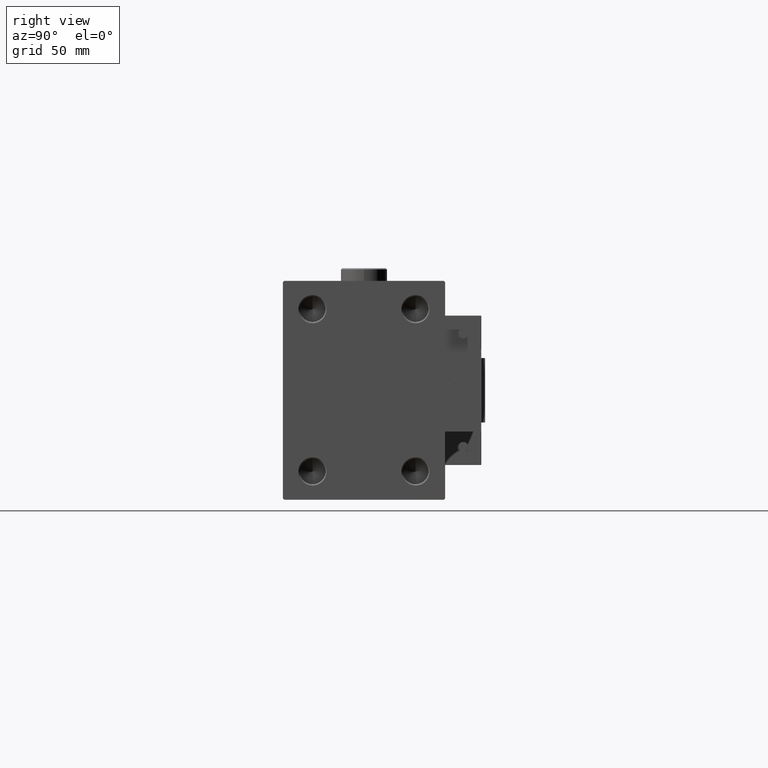
[diagram: clean part render]
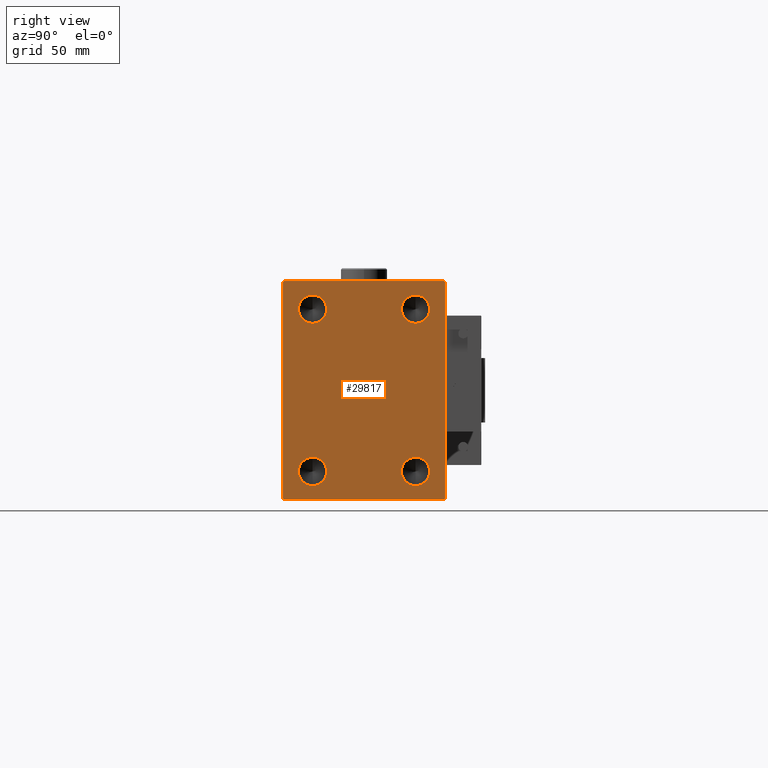
[diagram: same view with one face highlighted and labeled with its STEP entity id]
A machine part, right view. The second image highlights one B-rep face of the part: STEP entity #29817.
In plain terms, the highlighted planar face has unit normal (1, 0, 0).
Its self-contained STEP definition (entity closure, byte-faithful):
#253 = CIRCLE ( 'NONE', #27400, 5.500000000000032863 ) ;
#322 = VECTOR ( 'NONE', #26137, 1000.000000000000114 ) ;
#574 = EDGE_LOOP ( 'NONE', ( #2539, #31193 ) ) ;
#1069 = VERTEX_POINT ( 'NONE', #5787 ) ;
#1148 = ORIENTED_EDGE ( 'NONE', *, *, #22040, .T. ) ;
#1306 = VECTOR ( 'NONE', #42528, 1000.000000000000000 ) ;
#1458 = DIRECTION ( 'NONE',  ( 1.000000000000000000, 0.000000000000000000, 0.000000000000000000 ) ) ;
#1615 = CARTESIAN_POINT ( 'NONE',  ( 183.0000000000000000, 31.50000000000001421, -42.50000000000000711 ) ) ;
#1986 = CARTESIAN_POINT ( 'NONE',  ( 183.0000000000000000, -36.75000000000001421, 36.75000000000001421 ) ) ;
#2131 = DIRECTION ( 'NONE',  ( -0.000000000000000000, 0.7071067811865425767, -0.7071067811865525687 ) ) ;
#2152 = CARTESIAN_POINT ( 'NONE',  ( 183.0000000000000000, 19.99999999999999645, -31.50000000000000000 ) ) ;
#2352 = DIRECTION ( 'NONE',  ( 1.000000000000000000, -0.000000000000000000, -0.000000000000000000 ) ) ;
#2431 = EDGE_CURVE ( 'NONE', #7423, #1069, #38837, .T. ) ;
#2539 = ORIENTED_EDGE ( 'NONE', *, *, #48249, .F. ) ;
#2809 = CARTESIAN_POINT ( 'NONE',  ( 183.0000000000000000, 31.50000000000001421, -42.00000000000000711 ) ) ;
#2904 = CIRCLE ( 'NONE', #37671, 5.500000000000032863 ) ;
#2983 = VERTEX_POINT ( 'NONE', #40190 ) ;
#3030 = CARTESIAN_POINT ( 'NONE',  ( 183.0000000000000000, -20.00000000000000355, 25.99999999999996447 ) ) ;
#4111 = VERTEX_POINT ( 'NONE', #39088 ) ;
#4473 = AXIS2_PLACEMENT_3D ( 'NONE', #24215, #12008, #41193 ) ;
#4623 = EDGE_CURVE ( 'NONE', #10064, #8561, #38938, .T. ) ;
#5659 = DIRECTION ( 'NONE',  ( 0.000000000000000000, 1.000000000000000000, 0.000000000000000000 ) ) ;
#5787 = CARTESIAN_POINT ( 'NONE',  ( 183.0000000000000000, 19.99999999999999645, -25.99999999999996447 ) ) ;
#6499 = ORIENTED_EDGE ( 'NONE', *, *, #22228, .F. ) ;
#7144 = VERTEX_POINT ( 'NONE', #19071 ) ;
#7423 = VERTEX_POINT ( 'NONE', #22462 ) ;
#8236 = EDGE_CURVE ( 'NONE', #23596, #14877, #27504, .T. ) ;
#8561 = VERTEX_POINT ( 'NONE', #20272 ) ;
#8788 = VECTOR ( 'NONE', #28236, 1000.000000000000000 ) ;
#9044 = CARTESIAN_POINT ( 'NONE',  ( 183.0000000000000000, -20.00000000000000355, -25.99999999999996447 ) ) ;
#9174 = FACE_OUTER_BOUND ( 'NONE', #21297, .T. ) ;
#9427 = LINE ( 'NONE', #46094, #34926 ) ;
#9603 = LINE ( 'NONE', #1615, #1306 ) ;
#9975 = PLANE ( 'NONE',  #32776 ) ;
#10064 = VERTEX_POINT ( 'NONE', #9044 ) ;
#10511 = AXIS2_PLACEMENT_3D ( 'NONE', #28496, #16314, #40465 ) ;
#11382 = CIRCLE ( 'NONE', #18166, 5.500000000000032863 ) ;
#11904 = DIRECTION ( 'NONE',  ( 0.000000000000000000, 0.000000000000000000, -1.000000000000000000 ) ) ;
#12008 = DIRECTION ( 'NONE',  ( 1.000000000000000000, -0.000000000000000000, -0.000000000000000000 ) ) ;
#12057 = LINE ( 'NONE', #15788, #8788 ) ;
#12347 = ORIENTED_EDGE ( 'NONE', *, *, #19467, .F. ) ;
#12382 = DIRECTION ( 'NONE',  ( 0.000000000000000000, 0.000000000000000000, -1.000000000000000000 ) ) ;
#12489 = CARTESIAN_POINT ( 'NONE',  ( 183.0000000000000000, 36.75000000000001421, 36.75000000000001421 ) ) ;
#12722 = EDGE_CURVE ( 'NONE', #1069, #7423, #45922, .T. ) ;
#13750 = EDGE_CURVE ( 'NONE', #39682, #2983, #52354, .T. ) ;
#13852 = ORIENTED_EDGE ( 'NONE', *, *, #8236, .T. ) ;
#14877 = VERTEX_POINT ( 'NONE', #15042 ) ;
#15036 = DIRECTION ( 'NONE',  ( 0.000000000000000000, 0.000000000000000000, -1.000000000000000000 ) ) ;
#15042 = CARTESIAN_POINT ( 'NONE',  ( 183.0000000000000000, -31.50000000000000000, -42.00000000000000000 ) ) ;
#15788 = CARTESIAN_POINT ( 'NONE',  ( 183.0000000000000000, 31.50000000000000000, 42.49999999999999289 ) ) ;
#15951 = AXIS2_PLACEMENT_3D ( 'NONE', #31817, #27559, #11904 ) ;
#16050 = AXIS2_PLACEMENT_3D ( 'NONE', #40013, #51733, #12382 ) ;
#16314 = DIRECTION ( 'NONE',  ( 1.000000000000000000, -0.000000000000000000, -0.000000000000000000 ) ) ;
#18117 = ORIENTED_EDGE ( 'NONE', *, *, #45670, .T. ) ;
#18166 = AXIS2_PLACEMENT_3D ( 'NONE', #24046, #40249, #15036 ) ;
#19071 = CARTESIAN_POINT ( 'NONE',  ( 183.0000000000000000, 31.00000000000001421, -42.50000000000000711 ) ) ;
#19467 = EDGE_CURVE ( 'NONE', #26426, #40215, #11382, .T. ) ;
#19816 = CARTESIAN_POINT ( 'NONE',  ( 183.0000000000000000, -31.50000000000000000, 42.00000000000001421 ) ) ;
#20272 = CARTESIAN_POINT ( 'NONE',  ( 183.0000000000000000, -20.00000000000000355, -37.00000000000003553 ) ) ;
#20614 = EDGE_CURVE ( 'NONE', #24690, #38771, #2904, .T. ) ;
#21297 = EDGE_LOOP ( 'NONE', ( #31875, #1148, #13852, #31353, #24708, #18117, #24694, #44758 ) ) ;
#21382 = DIRECTION ( 'NONE',  ( 0.000000000000000000, 0.000000000000000000, -1.000000000000000000 ) ) ;
#22040 = EDGE_CURVE ( 'NONE', #4111, #23596, #50878, .T. ) ;
#22163 = EDGE_CURVE ( 'NONE', #2983, #4111, #12057, .T. ) ;
#22228 = EDGE_CURVE ( 'NONE', #40215, #26426, #42726, .T. ) ;
#22462 = CARTESIAN_POINT ( 'NONE',  ( 183.0000000000000000, 19.99999999999999645, -37.00000000000003553 ) ) ;
#22608 = VERTEX_POINT ( 'NONE', #2809 ) ;
#23596 = VERTEX_POINT ( 'NONE', #19816 ) ;
#24046 = CARTESIAN_POINT ( 'NONE',  ( 183.0000000000000000, -20.00000000000000355, 31.50000000000000000 ) ) ;
#24215 = CARTESIAN_POINT ( 'NONE',  ( 183.0000000000000000, -20.00000000000000355, -31.50000000000000000 ) ) ;
#24540 = CARTESIAN_POINT ( 'NONE',  ( 183.0000000000000000, -31.00000000000000000, -42.50000000000000711 ) ) ;
#24690 = VERTEX_POINT ( 'NONE', #38891 ) ;
#24694 = ORIENTED_EDGE ( 'NONE', *, *, #25632, .T. ) ;
#24708 = ORIENTED_EDGE ( 'NONE', *, *, #25428, .T. ) ;
#25428 = EDGE_CURVE ( 'NONE', #35140, #7144, #26359, .T. ) ;
#25576 = VECTOR ( 'NONE', #28672, 1000.000000000000114 ) ;
#25632 = EDGE_CURVE ( 'NONE', #22608, #39682, #9603, .T. ) ;
#26137 = DIRECTION ( 'NONE',  ( 0.000000000000000000, -0.7071067811865474617, -0.7071067811865474617 ) ) ;
#26138 = CARTESIAN_POINT ( 'NONE',  ( 183.0000000000000000, 0.000000000000000000, 0.000000000000000000 ) ) ;
#26256 = CARTESIAN_POINT ( 'NONE',  ( 183.0000000000000000, -31.50000000000000000, 42.49999999999998579 ) ) ;
#26359 = LINE ( 'NONE', #30606, #47106 ) ;
#26426 = VERTEX_POINT ( 'NONE', #40170 ) ;
#27400 = AXIS2_PLACEMENT_3D ( 'NONE', #45359, #41340, #42410 ) ;
#27504 = LINE ( 'NONE', #26256, #34718 ) ;
#27559 = DIRECTION ( 'NONE',  ( 1.000000000000000000, -0.000000000000000000, -0.000000000000000000 ) ) ;
#28236 = DIRECTION ( 'NONE',  ( 0.000000000000000000, -1.000000000000000000, -1.101411730778925171E-16 ) ) ;
#28496 = CARTESIAN_POINT ( 'NONE',  ( 183.0000000000000000, -20.00000000000000355, 31.50000000000000000 ) ) ;
#28672 = DIRECTION ( 'NONE',  ( -0.000000000000000000, -0.7071067811865474617, 0.7071067811865474617 ) ) ;
#29817 = ADVANCED_FACE ( 'NONE', ( #42102, #49572, #42632, #45576, #9174 ), #9975, .T. ) ;
#29896 = CIRCLE ( 'NONE', #4473, 5.500000000000032863 ) ;
#30606 = CARTESIAN_POINT ( 'NONE',  ( 183.0000000000000000, -31.50000000000000000, -42.50000000000000711 ) ) ;
#31193 = ORIENTED_EDGE ( 'NONE', *, *, #20614, .F. ) ;
#31353 = ORIENTED_EDGE ( 'NONE', *, *, #50077, .T. ) ;
#31514 = ORIENTED_EDGE ( 'NONE', *, *, #4623, .F. ) ;
#31601 = VECTOR ( 'NONE', #2131, 999.9999999999998863 ) ;
#31817 = CARTESIAN_POINT ( 'NONE',  ( 183.0000000000000000, 19.99999999999999645, -31.50000000000000000 ) ) ;
#31875 = ORIENTED_EDGE ( 'NONE', *, *, #22163, .T. ) ;
#32173 = CARTESIAN_POINT ( 'NONE',  ( 183.0000000000000000, -36.75000000000022737, -36.74999999999971578 ) ) ;
#32776 = AXIS2_PLACEMENT_3D ( 'NONE', #26138, #1458, #21382 ) ;
#33418 = CARTESIAN_POINT ( 'NONE',  ( 183.0000000000000000, 31.50000000000000000, 42.00000000000002132 ) ) ;
#33803 = EDGE_LOOP ( 'NONE', ( #31514, #43501 ) ) ;
#34718 = VECTOR ( 'NONE', #38490, 1000.000000000000000 ) ;
#34926 = VECTOR ( 'NONE', #37834, 1000.000000000000114 ) ;
#35031 = CARTESIAN_POINT ( 'NONE',  ( 183.0000000000000000, 19.99999999999999645, 31.50000000000000000 ) ) ;
#35140 = VERTEX_POINT ( 'NONE', #24540 ) ;
#37652 = CARTESIAN_POINT ( 'NONE',  ( 183.0000000000000000, 19.99999999999999645, 37.00000000000003553 ) ) ;
#37671 = AXIS2_PLACEMENT_3D ( 'NONE', #35031, #2352, #51516 ) ;
#37834 = DIRECTION ( 'NONE',  ( -0.000000000000000000, 0.7071067811865474617, 0.7071067811865474617 ) ) ;
#38490 = DIRECTION ( 'NONE',  ( 0.000000000000000000, 0.000000000000000000, -1.000000000000000000 ) ) ;
#38771 = VERTEX_POINT ( 'NONE', #37652 ) ;
#38837 = CIRCLE ( 'NONE', #15951, 5.500000000000032863 ) ;
#38891 = CARTESIAN_POINT ( 'NONE',  ( 183.0000000000000000, 19.99999999999999645, 25.99999999999996447 ) ) ;
#38938 = CIRCLE ( 'NONE', #16050, 5.500000000000032863 ) ;
#39088 = CARTESIAN_POINT ( 'NONE',  ( 183.0000000000000000, -31.00000000000002842, 42.49999999999998579 ) ) ;
#39682 = VERTEX_POINT ( 'NONE', #33418 ) ;
#40013 = CARTESIAN_POINT ( 'NONE',  ( 183.0000000000000000, -20.00000000000000355, -31.50000000000000000 ) ) ;
#40170 = CARTESIAN_POINT ( 'NONE',  ( 183.0000000000000000, -20.00000000000000355, 37.00000000000003553 ) ) ;
#40190 = CARTESIAN_POINT ( 'NONE',  ( 183.0000000000000000, 31.00000000000002842, 42.49999999999999289 ) ) ;
#40215 = VERTEX_POINT ( 'NONE', #3030 ) ;
#40249 = DIRECTION ( 'NONE',  ( 1.000000000000000000, -0.000000000000000000, -0.000000000000000000 ) ) ;
#40465 = DIRECTION ( 'NONE',  ( 0.000000000000000000, 0.000000000000000000, -1.000000000000000000 ) ) ;
#41193 = DIRECTION ( 'NONE',  ( 0.000000000000000000, 0.000000000000000000, -1.000000000000000000 ) ) ;
#41340 = DIRECTION ( 'NONE',  ( 1.000000000000000000, -0.000000000000000000, -0.000000000000000000 ) ) ;
#42102 = FACE_BOUND ( 'NONE', #574, .T. ) ;
#42410 = DIRECTION ( 'NONE',  ( 0.000000000000000000, 0.000000000000000000, -1.000000000000000000 ) ) ;
#42528 = DIRECTION ( 'NONE',  ( 0.000000000000000000, -1.632680918566406547E-16, 1.000000000000000000 ) ) ;
#42538 = DIRECTION ( 'NONE',  ( 1.000000000000000000, -0.000000000000000000, -0.000000000000000000 ) ) ;
#42632 = FACE_BOUND ( 'NONE', #33803, .T. ) ;
#42726 = CIRCLE ( 'NONE', #10511, 5.500000000000032863 ) ;
#43054 = DIRECTION ( 'NONE',  ( 0.000000000000000000, 0.000000000000000000, -1.000000000000000000 ) ) ;
#43501 = ORIENTED_EDGE ( 'NONE', *, *, #50016, .F. ) ;
#44508 = EDGE_LOOP ( 'NONE', ( #47630, #46274 ) ) ;
#44758 = ORIENTED_EDGE ( 'NONE', *, *, #13750, .T. ) ;
#45359 = CARTESIAN_POINT ( 'NONE',  ( 183.0000000000000000, 19.99999999999999645, 31.50000000000000000 ) ) ;
#45576 = FACE_BOUND ( 'NONE', #44508, .T. ) ;
#45670 = EDGE_CURVE ( 'NONE', #7144, #22608, #9427, .T. ) ;
#45922 = CIRCLE ( 'NONE', #47602, 5.500000000000032863 ) ;
#46094 = CARTESIAN_POINT ( 'NONE',  ( 183.0000000000000000, 36.75000000000001421, -36.75000000000001421 ) ) ;
#46274 = ORIENTED_EDGE ( 'NONE', *, *, #2431, .F. ) ;
#47106 = VECTOR ( 'NONE', #5659, 1000.000000000000000 ) ;
#47602 = AXIS2_PLACEMENT_3D ( 'NONE', #2152, #42538, #43054 ) ;
#47630 = ORIENTED_EDGE ( 'NONE', *, *, #12722, .F. ) ;
#48249 = EDGE_CURVE ( 'NONE', #38771, #24690, #253, .T. ) ;
#49398 = EDGE_LOOP ( 'NONE', ( #12347, #6499 ) ) ;
#49457 = LINE ( 'NONE', #32173, #31601 ) ;
#49572 = FACE_BOUND ( 'NONE', #49398, .T. ) ;
#50016 = EDGE_CURVE ( 'NONE', #8561, #10064, #29896, .T. ) ;
#50077 = EDGE_CURVE ( 'NONE', #14877, #35140, #49457, .T. ) ;
#50878 = LINE ( 'NONE', #1986, #322 ) ;
#51516 = DIRECTION ( 'NONE',  ( 0.000000000000000000, 0.000000000000000000, -1.000000000000000000 ) ) ;
#51733 = DIRECTION ( 'NONE',  ( 1.000000000000000000, -0.000000000000000000, -0.000000000000000000 ) ) ;
#52354 = LINE ( 'NONE', #12489, #25576 ) ;